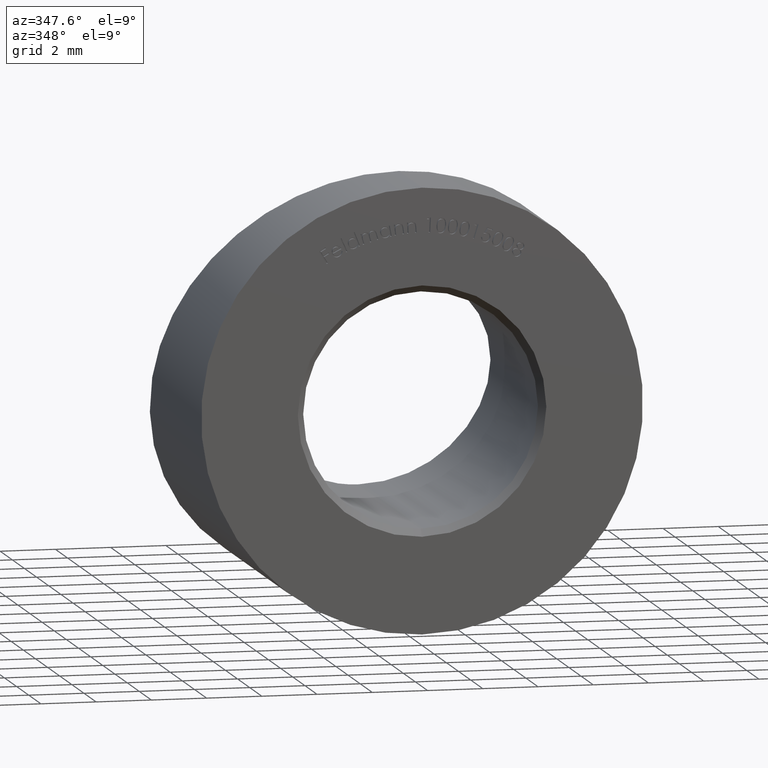
[diagram: clean part render]
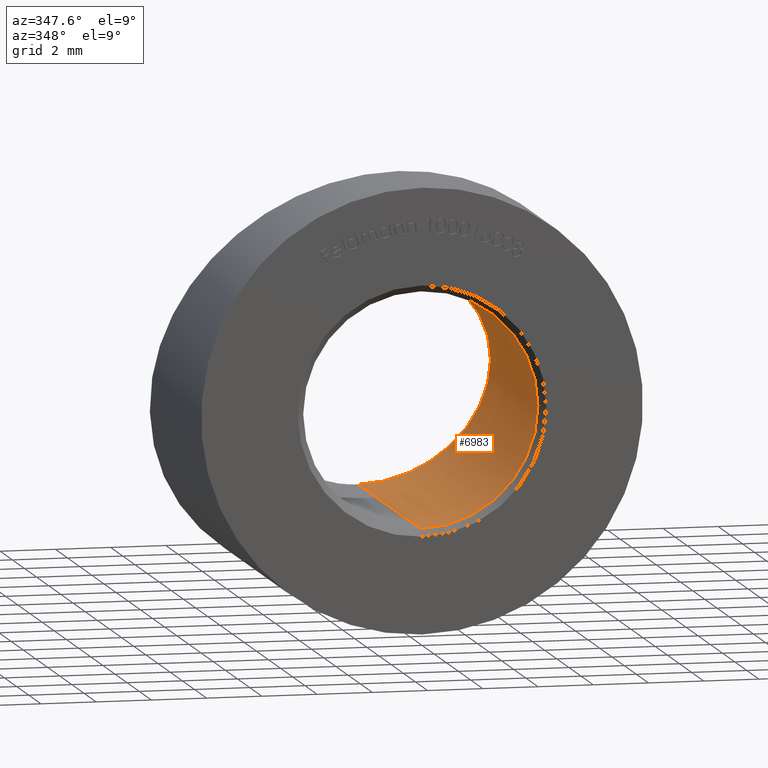
[diagram: same view with one face highlighted and labeled with its STEP entity id]
A machine part, auxiliary view. The second image highlights one B-rep face of the part: STEP entity #6983.
In plain terms, the highlighted cylindrical surface (partial cylindrical patch) has radius 4.25 mm, axis along (-0, -1, -0).
Its self-contained STEP definition (entity closure, byte-faithful):
#240 = CIRCLE ( 'NONE', #2918, 4.250000000000000000 ) ;
#243 = VERTEX_POINT ( 'NONE', #5089 ) ;
#847 = CARTESIAN_POINT ( 'NONE',  ( 0.0000000000000000000, 12.54285714285714600, -4.250000000000000000 ) ) ;
#1313 = EDGE_CURVE ( 'NONE', #12603, #13315, #5124, .T. ) ;
#1648 = CARTESIAN_POINT ( 'NONE',  ( 5.204748896376250700E-016, 5.892857142857140600, 4.250000000000000000 ) ) ;
#1714 = VECTOR ( 'NONE', #8298, 1000.000000000000000 ) ;
#1927 = AXIS2_PLACEMENT_3D ( 'NONE', #12554, #9191, #7142 ) ;
#2400 = EDGE_CURVE ( 'NONE', #12603, #10571, #5802, .T. ) ;
#2514 = ORIENTED_EDGE ( 'NONE', *, *, #13025, .T. ) ;
#2774 = EDGE_CURVE ( 'NONE', #10571, #243, #5951, .T. ) ;
#2918 = AXIS2_PLACEMENT_3D ( 'NONE', #9316, #13520, #11477 ) ;
#3057 = VECTOR ( 'NONE', #3925, 1000.000000000000000 ) ;
#3322 = CARTESIAN_POINT ( 'NONE',  ( 0.0000000000000000000, 10.50714285714285800, -4.250000000000000000 ) ) ;
#3324 = CYLINDRICAL_SURFACE ( 'NONE', #1927, 4.250000000000000000 ) ;
#3447 = CARTESIAN_POINT ( 'NONE',  ( 0.0000000000000000000, 0.2499999999999985000, -4.250000000000000000 ) ) ;
#3925 = DIRECTION ( 'NONE',  ( -0.0000000000000000000, -1.000000000000000000, -0.0000000000000000000 ) ) ;
#4849 = ORIENTED_EDGE ( 'NONE', *, *, #2774, .F. ) ;
#5089 = CARTESIAN_POINT ( 'NONE',  ( 5.204748896376250700E-016, 0.2499999999999985000, 4.250000000000000000 ) ) ;
#5124 = LINE ( 'NONE', #847, #3057 ) ;
#5802 =( BOUNDED_CURVE ( )  B_SPLINE_CURVE ( 3, ( #11354, #10287, #12505, #1648 ),
 .UNSPECIFIED., .F., .F. ) 
 B_SPLINE_CURVE_WITH_KNOTS ( ( 4, 4 ),
 ( 3.141592653589793100, 6.283185307179586200 ),
 .UNSPECIFIED. ) 
 CURVE ( )  GEOMETRIC_REPRESENTATION_ITEM ( )  RATIONAL_B_SPLINE_CURVE ( ( 1.000000000000000000, 0.3333333333333333700, 0.3333333333333333700, 1.000000000000000000 ) ) 
 REPRESENTATION_ITEM ( '' )  );
#5951 = LINE ( 'NONE', #10548, #1714 ) ;
#6292 = ORIENTED_EDGE ( 'NONE', *, *, #2400, .F. ) ;
#6983 = ADVANCED_FACE ( 'NONE', ( #9315 ), #3324, .F. ) ;
#7015 = EDGE_LOOP ( 'NONE', ( #4849, #6292, #14083, #2514 ) ) ;
#7142 = DIRECTION ( 'NONE',  ( 0.0000000000000000000, 0.0000000000000000000, -1.000000000000000000 ) ) ;
#8298 = DIRECTION ( 'NONE',  ( -0.0000000000000000000, -1.000000000000000000, -0.0000000000000000000 ) ) ;
#9191 = DIRECTION ( 'NONE',  ( -0.0000000000000000000, -1.000000000000000000, -0.0000000000000000000 ) ) ;
#9315 = FACE_OUTER_BOUND ( 'NONE', #7015, .T. ) ;
#9316 = CARTESIAN_POINT ( 'NONE',  ( 0.0000000000000000000, 0.2499999999999985000, 0.0000000000000000000 ) ) ;
#10287 = CARTESIAN_POINT ( 'NONE',  ( 8.499999999999998200, 10.50714285714285800, -4.250000000000001800 ) ) ;
#10548 = CARTESIAN_POINT ( 'NONE',  ( 5.204748896376250700E-016, 12.54285714285714600, 4.250000000000000000 ) ) ;
#10571 = VERTEX_POINT ( 'NONE', #11902 ) ;
#11354 = CARTESIAN_POINT ( 'NONE',  ( 0.0000000000000000000, 10.50714285714285800, -4.250000000000000000 ) ) ;
#11477 = DIRECTION ( 'NONE',  ( 0.0000000000000000000, 0.0000000000000000000, 1.000000000000000000 ) ) ;
#11902 = CARTESIAN_POINT ( 'NONE',  ( 5.204748896376250700E-016, 5.892857142857140600, 4.250000000000000000 ) ) ;
#12505 = CARTESIAN_POINT ( 'NONE',  ( 8.499999999999998200, 5.892857142857139700, 4.250000000000000900 ) ) ;
#12554 = CARTESIAN_POINT ( 'NONE',  ( 0.0000000000000000000, 12.54285714285714600, 0.0000000000000000000 ) ) ;
#12603 = VERTEX_POINT ( 'NONE', #3322 ) ;
#13025 = EDGE_CURVE ( 'NONE', #13315, #243, #240, .T. ) ;
#13315 = VERTEX_POINT ( 'NONE', #3447 ) ;
#13520 = DIRECTION ( 'NONE',  ( 0.0000000000000000000, -1.000000000000000000, 0.0000000000000000000 ) ) ;
#14083 = ORIENTED_EDGE ( 'NONE', *, *, #1313, .T. ) ;